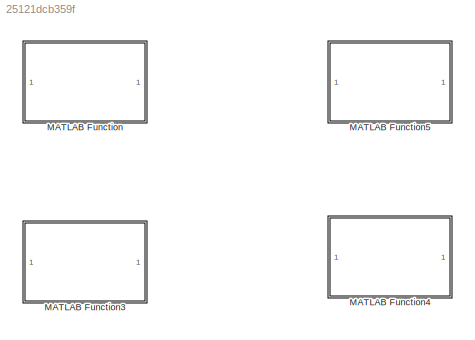
MODEL slx_25121dcb359f
KIND model
CONFIG AbsTol = auto
CONFIG EnableMultiTasking = off
CONFIG FixedStep = auto
CONFIG MaxStep = auto
CONFIG MinStep = auto
CONFIG RelTol = 1e-3
CONFIG SampleTimeConstraint = Unconstrained
CONFIG SolverName = VariableStepAuto
CONFIG StartTime = 0.0
CONFIG StopTime = 10.0
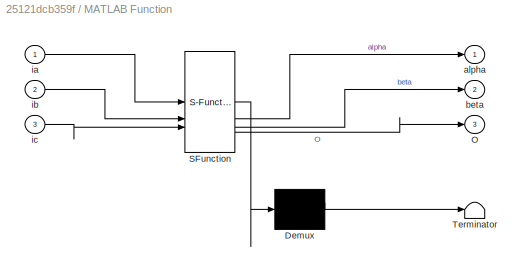
BLOCK [SubSystem] MATLAB Function
  ErrorFcn = Stateflow.Translate.translate
  LibrarySourceBlock = simulink/User-Defined\nFunctions/MATLAB Function
  PermitHierarchicalResolution = ExplicitOnly
  SFBlockType = MATLAB Function
  TreatAsAtomicUnit = on
BLOCK [Demux] MATLAB Function/ Demux 
  Outputs = 1
BLOCK [S-Function] MATLAB Function/ SFunction 
  EnableBusSupport = on
  FunctionName = sf_sfun
  PortCounts = [3 4]
  SFcnIsStateOwnerBlock = off
  SFunctionDeploymentMode = off
  Tag = Stateflow S-Function 2
BLOCK [Terminator] MATLAB Function/ Terminator 
BLOCK [Outport] MATLAB Function/O
  Port = 3
BLOCK [Outport] MATLAB Function/alpha
BLOCK [Outport] MATLAB Function/beta
  Port = 2
BLOCK [Inport] MATLAB Function/ia
BLOCK [Inport] MATLAB Function/ib
  Port = 2
BLOCK [Inport] MATLAB Function/ic
  Port = 3
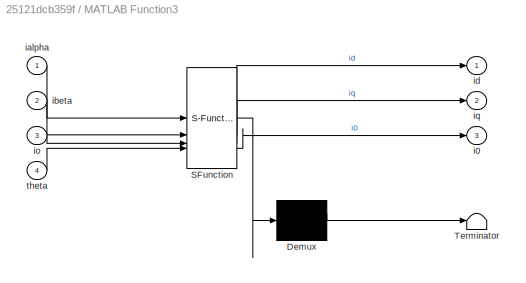
BLOCK [SubSystem] MATLAB Function3
  ErrorFcn = Stateflow.Translate.translate
  LibrarySourceBlock = simulink/User-Defined\nFunctions/MATLAB Function
  PermitHierarchicalResolution = ExplicitOnly
  SFBlockType = MATLAB Function
  TreatAsAtomicUnit = on
BLOCK [Demux] MATLAB Function3/ Demux 
  Outputs = 1
BLOCK [S-Function] MATLAB Function3/ SFunction 
  EnableBusSupport = on
  FunctionName = sf_sfun
  PortCounts = [4 4]
  SFcnIsStateOwnerBlock = off
  SFunctionDeploymentMode = off
  Tag = Stateflow S-Function 4
BLOCK [Terminator] MATLAB Function3/ Terminator 
BLOCK [Outport] MATLAB Function3/i0
  Port = 3
BLOCK [Inport] MATLAB Function3/ialpha
BLOCK [Inport] MATLAB Function3/ibeta
  Port = 2
BLOCK [Outport] MATLAB Function3/id
BLOCK [Inport] MATLAB Function3/io
  Port = 3
BLOCK [Outport] MATLAB Function3/iq
  Port = 2
BLOCK [Inport] MATLAB Function3/theta
  Port = 4
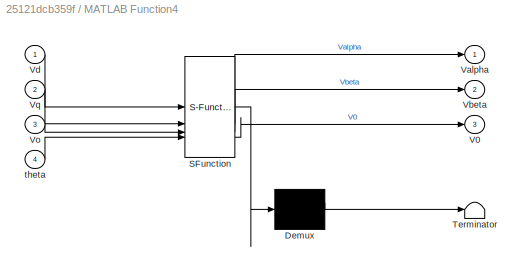
BLOCK [SubSystem] MATLAB Function4
  ErrorFcn = Stateflow.Translate.translate
  LibrarySourceBlock = simulink/User-Defined\nFunctions/MATLAB Function
  PermitHierarchicalResolution = ExplicitOnly
  SFBlockType = MATLAB Function
  TreatAsAtomicUnit = on
BLOCK [Demux] MATLAB Function4/ Demux 
  Outputs = 1
BLOCK [S-Function] MATLAB Function4/ SFunction 
  EnableBusSupport = on
  FunctionName = sf_sfun
  PortCounts = [4 4]
  SFcnIsStateOwnerBlock = off
  SFunctionDeploymentMode = off
  Tag = Stateflow S-Function 5
BLOCK [Terminator] MATLAB Function4/ Terminator 
BLOCK [Outport] MATLAB Function4/V0
  Port = 3
BLOCK [Outport] MATLAB Function4/Valpha
BLOCK [Outport] MATLAB Function4/Vbeta
  Port = 2
BLOCK [Inport] MATLAB Function4/Vd
BLOCK [Inport] MATLAB Function4/Vo
  Port = 3
BLOCK [Inport] MATLAB Function4/Vq
  Port = 2
BLOCK [Inport] MATLAB Function4/theta
  Port = 4
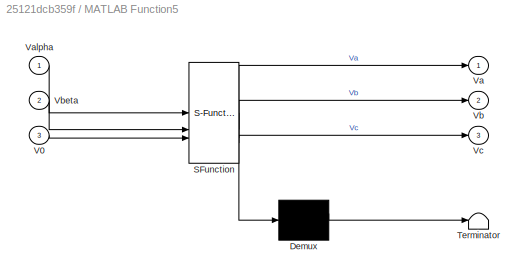
BLOCK [SubSystem] MATLAB Function5
  ErrorFcn = Stateflow.Translate.translate
  LibrarySourceBlock = simulink/User-Defined\nFunctions/MATLAB Function
  PermitHierarchicalResolution = ExplicitOnly
  SFBlockType = MATLAB Function
  TreatAsAtomicUnit = on
BLOCK [Demux] MATLAB Function5/ Demux 
  Outputs = 1
BLOCK [S-Function] MATLAB Function5/ SFunction 
  EnableBusSupport = on
  FunctionName = sf_sfun
  PortCounts = [3 4]
  SFcnIsStateOwnerBlock = off
  SFunctionDeploymentMode = off
  Tag = Stateflow S-Function 6
BLOCK [Terminator] MATLAB Function5/ Terminator 
BLOCK [Inport] MATLAB Function5/V0
  Port = 3
BLOCK [Outport] MATLAB Function5/Va
BLOCK [Inport] MATLAB Function5/Valpha
BLOCK [Outport] MATLAB Function5/Vb
  Port = 2
BLOCK [Inport] MATLAB Function5/Vbeta
  Port = 2
BLOCK [Outport] MATLAB Function5/Vc
  Port = 3
CHART MATLAB Function states=1 transitions=1
  STATE_LABEL 'eML_blk_kernel()'
  STATE_LABEL 'SCRIPT:\nfunction [alpha,beta,O] = Clark(ia,ib,ic)\n\nalpha =  2/3 * (ia - 0.5*ib - 0.5*ic);\n\nbeta  =  2/3 * (((sqrt(3)*ib)/2) + (-(sqrt(3)*ic)/2));\n\nO     =  2/3 * (0.5*ia + 0.5*ib + 0.5*ic);\n\n'
CHART MATLAB Function3 states=1 transitions=1
  STATE_LABEL 'eML_blk_kernel()'
  STATE_LABEL 'SCRIPT:\nfunction [id,iq,i0] = Park(ialpha,ibeta,io,theta)\n\ns=sin(theta);\nc=cos(theta);\n\nid = c * ialpha + s * ibeta;\n\niq = -s * ialpha + c * ibeta;\n\ni0 = io;\n\n'
CHART MATLAB Function4 states=1 transitions=1
  STATE_LABEL 'eML_blk_kernel()'
  STATE_LABEL 'SCRIPT:\nfunction [Valpha,Vbeta,V0] = InvPark(Vd,Vq,Vo,theta)\n\nc=cos(theta);\ns=sin(theta);\n\nValpha = Vd*c - Vq*s;\n\nVbeta = Vq*c + Vd*s;\n\nV0 = Vo;\n'
CHART MATLAB Function5 states=1 transitions=1
  STATE_LABEL 'eML_blk_kernel()'
  STATE_LABEL 'SCRIPT:\nfunction [Va,Vb,Vc] = InvClarke(Valpha,Vbeta,V0)\n\nVa = Valpha + V0;\n\nVb = -0.5*Valpha + (sqrt(3)/2)*Vbeta + V0;\n\nVc = -0.5*Valpha - (sqrt(3)/2)*Vbeta + V0;\n'
CHART  states=0 transitions=0
CHART  states=0 transitions=0
CHART  states=0 transitions=0
CHART  states=0 transitions=0
